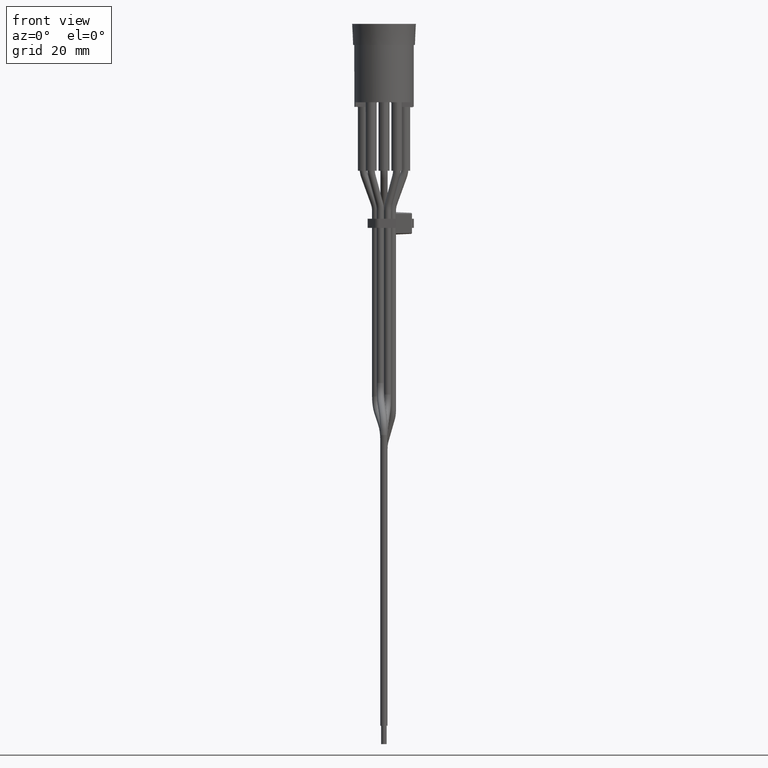
[diagram: clean part render]
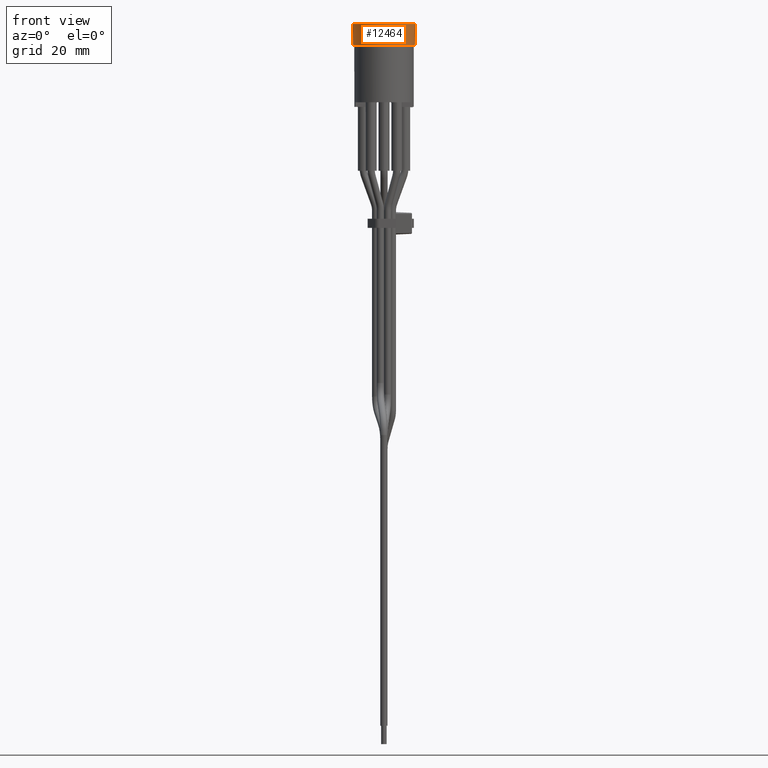
[diagram: same view with one face highlighted and labeled with its STEP entity id]
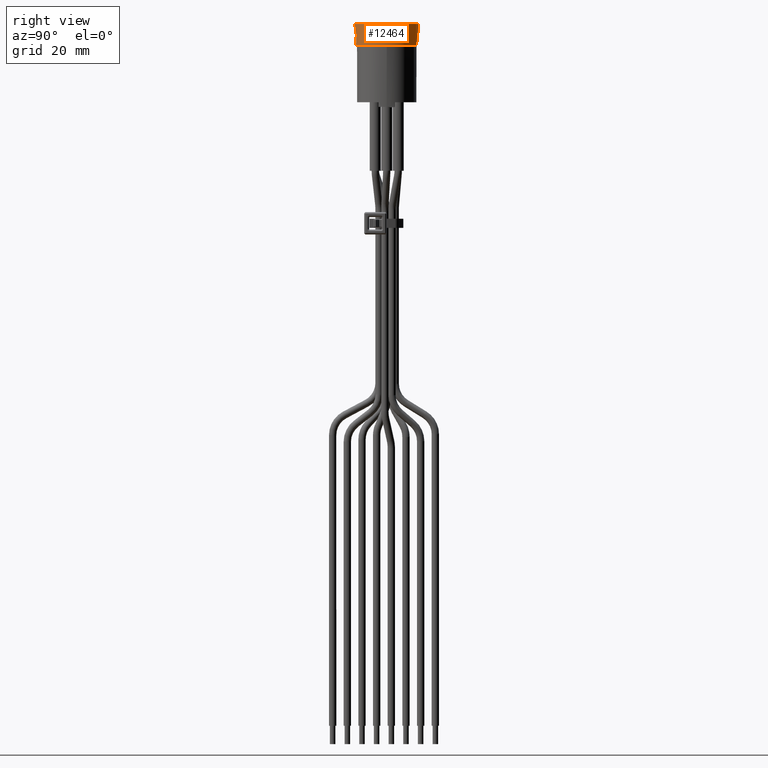
[diagram: same view with one face highlighted and labeled with its STEP entity id]
A machine part, front view. The second image highlights one B-rep face of the part: STEP entity #12464.
A second angle (right view) of the same face is appended — the face is thin or edge-on in the first view.
In plain terms, the highlighted conical surface has half-angle 3.111 deg.
Its self-contained STEP definition (entity closure, byte-faithful):
#108=ELLIPSE('',#13533,43.1862117913679,4.04145188432739);
#109=ELLIPSE('',#13534,43.1862117913679,4.04145188432739);
#126=CONICAL_SURFACE('',#13535,6.875,0.0542944119083061);
#1366=FACE_OUTER_BOUND('',#2083,.T.);
#2083=EDGE_LOOP('',(#10838,#10839,#10840,#10841));
#2672=CIRCLE('',#13375,6.75);
#2675=CIRCLE('',#13379,7.);
#5695=VERTEX_POINT('',#21106);
#5696=VERTEX_POINT('',#21107);
#5699=VERTEX_POINT('',#21116);
#7201=EDGE_CURVE('',#5695,#5696,#2672,.T.);
#7206=EDGE_CURVE('',#5699,#5699,#2675,.T.);
#7757=EDGE_CURVE('',#5696,#5699,#108,.T.);
#7758=EDGE_CURVE('',#5699,#5695,#109,.T.);
#10838=ORIENTED_EDGE('',*,*,#7757,.F.);
#10839=ORIENTED_EDGE('',*,*,#7201,.F.);
#10840=ORIENTED_EDGE('',*,*,#7758,.F.);
#10841=ORIENTED_EDGE('',*,*,#7206,.T.);
#12464=ADVANCED_FACE('',(#1366),#126,.T.);
#13375=AXIS2_PLACEMENT_3D('',#21108,#15692,#15693);
#13379=AXIS2_PLACEMENT_3D('',#21117,#15702,#15703);
#13533=AXIS2_PLACEMENT_3D('',#22928,#16449,#16450);
#13534=AXIS2_PLACEMENT_3D('',#22929,#16451,#16452);
#13535=AXIS2_PLACEMENT_3D('',#22930,#16453,#16454);
#15692=DIRECTION('center_axis',(1.33148491864264E-14,1.02644414540674E-28,
-1.));
#15693=DIRECTION('ref_axis',(7.83572744318549E-15,-1.,1.68711463128373E-30));
#15702=DIRECTION('center_axis',(1.33148491864264E-14,1.02644414540674E-28,
-1.));
#15703=DIRECTION('ref_axis',(-1.,-7.83572744318549E-15,-1.33148491864264E-14));
#16449=DIRECTION('center_axis',(-6.35105335662396E-15,0.994144463069457,
-0.108059180768419));
#16450=DIRECTION('ref_axis',(-1.43668828284083E-14,0.108059180768419,0.994144463069457));
#16451=DIRECTION('center_axis',(-6.35105335662396E-15,0.994144463069457,
-0.108059180768419));
#16452=DIRECTION('ref_axis',(-1.43668828284083E-14,0.108059180768419,0.994144463069457));
#16453=DIRECTION('center_axis',(-1.33148491864264E-14,-1.02644414540674E-28,
1.));
#16454=DIRECTION('ref_axis',(7.83572744318549E-15,-1.,1.68711463128373E-30));
#21106=CARTESIAN_POINT('',(1.82002747231991,6.50000000000001,20.3999999999999));
#21107=CARTESIAN_POINT('',(-1.82002747232035,6.49999999999999,20.3999999999999));
#21108=CARTESIAN_POINT('Origin',(-1.6643561483033E-13,-1.28305518175842E-27,
20.3999999999999));
#21116=CARTESIAN_POINT('',(-2.8253401319019E-13,7.,24.9999999999999));
#21117=CARTESIAN_POINT('Origin',(-2.27683921087891E-13,-1.75521948864552E-27,
24.9999999999999));
#22928=CARTESIAN_POINT('Origin',(3.24295794501134E-13,2.33333333333333,
-17.9333333333334));
#22929=CARTESIAN_POINT('Origin',(3.24295794501134E-13,2.33333333333333,
-17.9333333333334));
#22930=CARTESIAN_POINT('Origin',(-1.97059767959111E-13,-1.51913733520197E-27,
22.6999999999999));